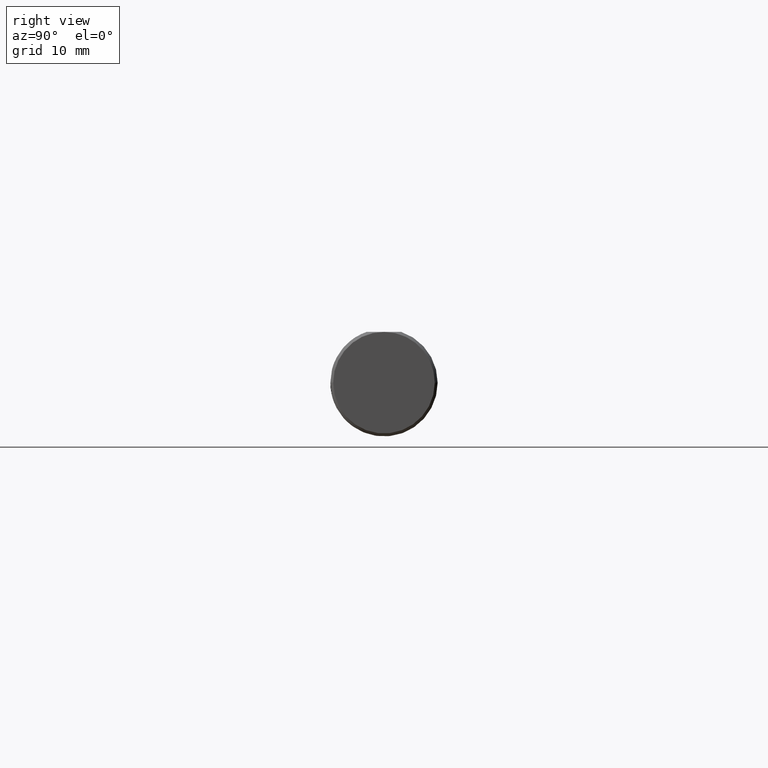
[diagram: clean part render]
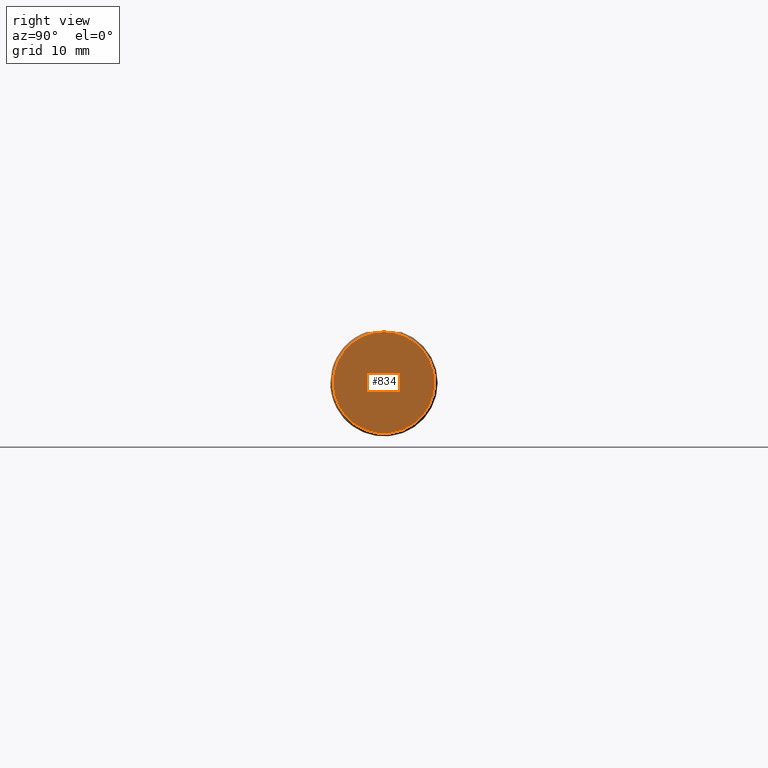
[diagram: same view with one face highlighted and labeled with its STEP entity id]
A machine part, right view. The second image highlights one B-rep face of the part: STEP entity #834.
In plain terms, the highlighted planar face has unit normal (1, 0, -0).
Its self-contained STEP definition (entity closure, byte-faithful):
#21 = CARTESIAN_POINT ( 'NONE',  ( -4.969808731120575398E-33, 3.199103279729614531E-16, 0.1773500000000000909 ) ) ;
#34 = CIRCLE ( 'NONE', #518, 0.1773500000000004795 ) ;
#47 = CARTESIAN_POINT ( 'NONE',  ( 1.147187889101284552E-17, 1.404899976408496659E-33, 0.000000000000000000 ) ) ;
#95 = AXIS2_PLACEMENT_3D ( 'NONE', #546, #822, #622 ) ;
#112 = EDGE_CURVE ( 'NONE', #402, #271, #309, .T. ) ;
#142 = CARTESIAN_POINT ( 'NONE',  ( -1.024723209186555973E-17, 0.1773500000000008403, 2.233143438245201271E-17 ) ) ;
#172 = FACE_OUTER_BOUND ( 'NONE', #224, .T. ) ;
#184 = ORIENTED_EDGE ( 'NONE', *, *, #190, .T. ) ;
#190 = EDGE_CURVE ( 'NONE', #427, #402, #496, .T. ) ;
#224 = EDGE_LOOP ( 'NONE', ( #184, #494, #503 ) ) ;
#271 = VERTEX_POINT ( 'NONE', #142 ) ;
#289 = AXIS2_PLACEMENT_3D ( 'NONE', #47, #657, #784 ) ;
#309 = CIRCLE ( 'NONE', #379, 0.1773500000000004795 ) ;
#326 = DIRECTION ( 'NONE',  ( 1.000000000000000000, 1.224646799147352961E-16, -0.000000000000000000 ) ) ;
#379 = AXIS2_PLACEMENT_3D ( 'NONE', #665, #396, #795 ) ;
#388 = PLANE ( 'NONE',  #289 ) ;
#396 = DIRECTION ( 'NONE',  ( 1.000000000000000000, 1.224646799147352961E-16, -0.000000000000000000 ) ) ;
#402 = VERTEX_POINT ( 'NONE', #420 ) ;
#420 = CARTESIAN_POINT ( 'NONE',  ( 3.319098987389115832E-17, -0.1773500000000000909, 0.000000000000000000 ) ) ;
#427 = VERTEX_POINT ( 'NONE', #21 ) ;
#494 = ORIENTED_EDGE ( 'NONE', *, *, #112, .T. ) ;
#496 = CIRCLE ( 'NONE', #95, 0.1773500000000004795 ) ;
#499 = DIRECTION ( 'NONE',  ( -1.224646799147352961E-16, 1.000000000000000000, 0.000000000000000000 ) ) ;
#503 = ORIENTED_EDGE ( 'NONE', *, *, #746, .T. ) ;
#518 = AXIS2_PLACEMENT_3D ( 'NONE', #729, #326, #499 ) ;
#546 = CARTESIAN_POINT ( 'NONE',  ( 1.147187889101280084E-17, 3.673940397442058882E-16, 0.000000000000000000 ) ) ;
#622 = DIRECTION ( 'NONE',  ( -1.224646799147352961E-16, 1.000000000000000000, 0.000000000000000000 ) ) ;
#657 = DIRECTION ( 'NONE',  ( 1.000000000000000000, 1.224646799147352961E-16, -0.000000000000000000 ) ) ;
#665 = CARTESIAN_POINT ( 'NONE',  ( 1.147187889101280084E-17, 3.673940397442058882E-16, 0.000000000000000000 ) ) ;
#729 = CARTESIAN_POINT ( 'NONE',  ( 1.147187889101280084E-17, 3.673940397442058882E-16, 0.000000000000000000 ) ) ;
#746 = EDGE_CURVE ( 'NONE', #271, #427, #34, .T. ) ;
#784 = DIRECTION ( 'NONE',  ( -1.224646799147352961E-16, 1.000000000000000000, 0.000000000000000000 ) ) ;
#795 = DIRECTION ( 'NONE',  ( -1.224646799147352961E-16, 1.000000000000000000, 0.000000000000000000 ) ) ;
#822 = DIRECTION ( 'NONE',  ( 1.000000000000000000, 1.224646799147352961E-16, -0.000000000000000000 ) ) ;
#834 = ADVANCED_FACE ( 'NONE', ( #172 ), #388, .T. ) ;